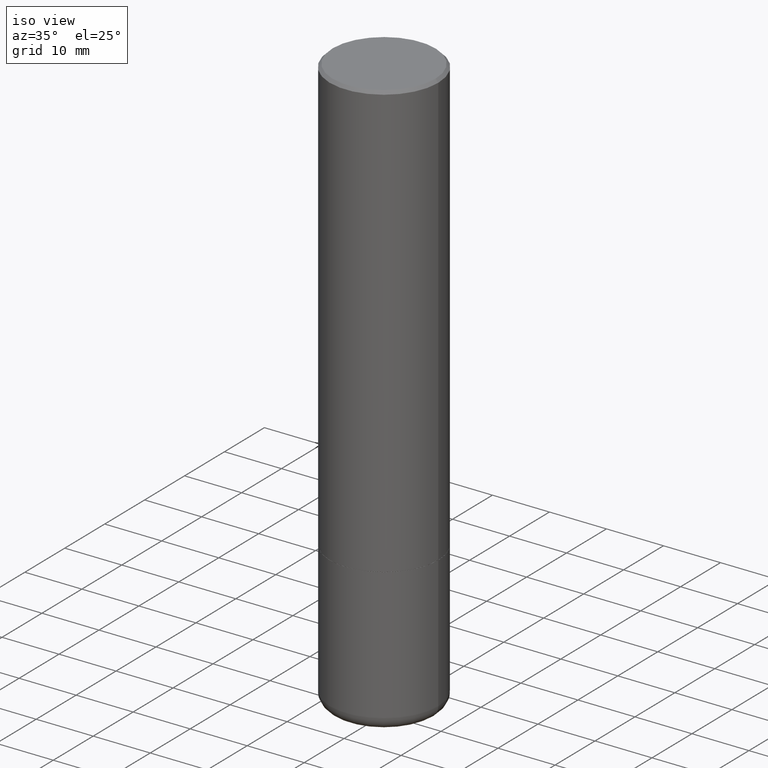
[diagram: clean part render]
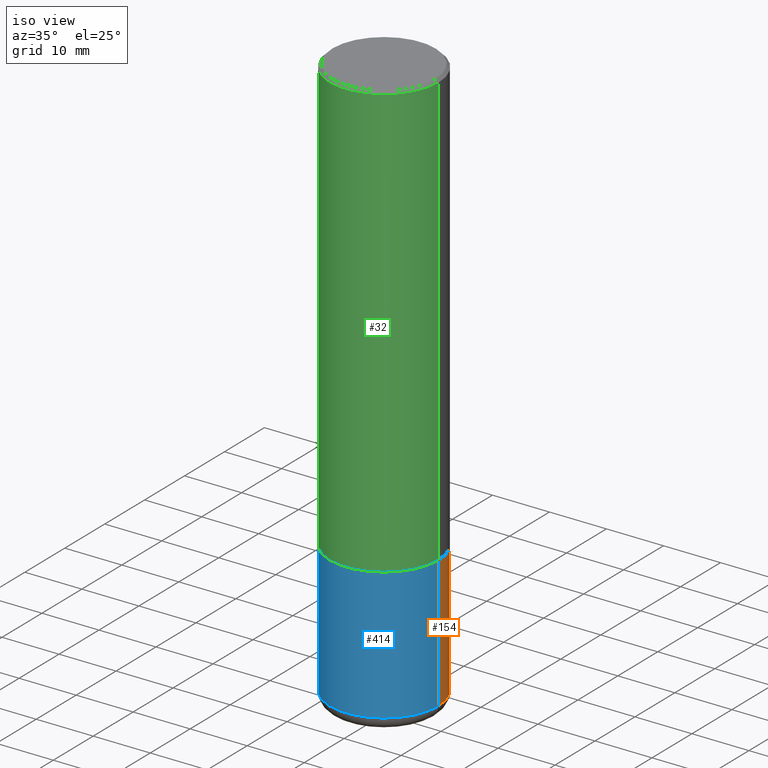
[diagram: same view with three faces highlighted in distinct colors, each labeled with its STEP entity id]
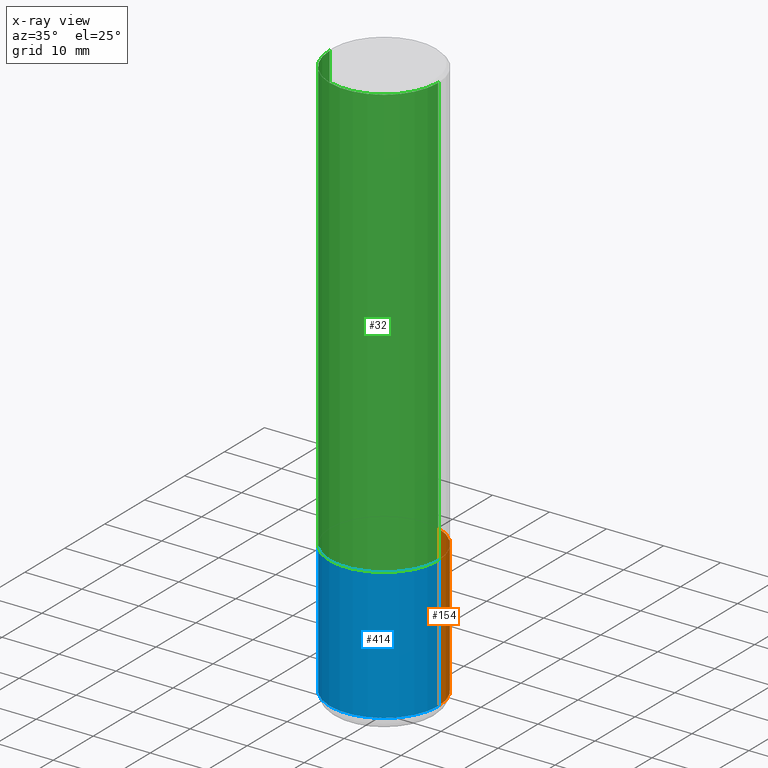
[diagram: x-ray of the same camera — body ghosted, the three highlighted faces saturated]
A machine part, iso view with three faces highlighted in distinct colors.
The next image is the same camera in x-ray (body ghosted, the three faces saturated) — at least one of them is partly hidden behind the body in this view.
Their STEP definitions:

[orange] entity #154 — the highlighted cylindrical surface (partial cylindrical patch) has radius 9.525 mm, axis along (-0, 0, 1).
#10 = ORIENTED_EDGE ( 'NONE', *, *, #254, .T. ) ;
#11 = CIRCLE ( 'NONE', #303, 0.3750000000000000555 ) ;
#46 = CARTESIAN_POINT ( 'NONE',  ( -0.3749999999999997780, 2.664535259100374119E-15, -1.844600658845588477E-29 ) ) ;
#57 = CARTESIAN_POINT ( 'NONE',  ( 0.3749999999999995004, -1.309305502066178164E-14, -2.999999999999999556 ) ) ;
#79 = VECTOR ( 'NONE', #162, 39.37007874015748143 ) ;
#95 = VERTEX_POINT ( 'NONE', #299 ) ;
#97 = EDGE_CURVE ( 'NONE', #119, #385, #11, .T. ) ;
#107 = CARTESIAN_POINT ( 'NONE',  ( 0.000000000000000000, 0.000000000000000000, 0.000000000000000000 ) ) ;
#110 = CARTESIAN_POINT ( 'NONE',  ( 0.3750000000000000555, -1.627031500405102774E-14, -3.910003426924224534 ) ) ;
#119 = VERTEX_POINT ( 'NONE', #110 ) ;
#127 = ORIENTED_EDGE ( 'NONE', *, *, #97, .T. ) ;
#152 = DIRECTION ( 'NONE',  ( 1.000000000000000000, -6.982962677686266711E-15, 0.000000000000000000 ) ) ;
#154 = ADVANCED_FACE ( 'NONE', ( #184 ), #305, .T. ) ;
#161 = VECTOR ( 'NONE', #203, 39.37007874015748143 ) ;
#162 = DIRECTION ( 'NONE',  ( -2.445468806185136877E-29, 3.491481338843145188E-15, 1.000000000000000000 ) ) ;
#168 = ORIENTED_EDGE ( 'NONE', *, *, #350, .F. ) ;
#174 = ORIENTED_EDGE ( 'NONE', *, *, #220, .F. ) ;
#184 = FACE_OUTER_BOUND ( 'NONE', #400, .T. ) ;
#195 = CIRCLE ( 'NONE', #429, 0.3749999999999995004 ) ;
#203 = DIRECTION ( 'NONE',  ( -2.445468806185136877E-29, 3.491481338843145188E-15, 1.000000000000000000 ) ) ;
#217 = DIRECTION ( 'NONE',  ( 1.000000000000000000, -6.982962677686265922E-15, 4.876176775795935793E-29 ) ) ;
#220 = EDGE_CURVE ( 'NONE', #119, #437, #384, .T. ) ;
#227 = DIRECTION ( 'NONE',  ( -2.445468806185136597E-29, 3.491481338843145583E-15, 1.000000000000000000 ) ) ;
#254 = EDGE_CURVE ( 'NONE', #385, #95, #420, .T. ) ;
#263 = CARTESIAN_POINT ( 'NONE',  ( -0.3750000000000000555, -9.398538749123680552E-15, -3.910003426924224534 ) ) ;
#268 = CARTESIAN_POINT ( 'NONE',  ( 9.561791412620176703E-29, -1.365170399991867772E-14, -3.910003426924224534 ) ) ;
#277 = CARTESIAN_POINT ( 'NONE',  ( 0.3749999999999997780, -2.618611004132348044E-15, 1.828566290923474801E-29 ) ) ;
#299 = CARTESIAN_POINT ( 'NONE',  ( -0.3749999999999995004, -9.398538749123683708E-15, -2.999999999999999556 ) ) ;
#303 = AXIS2_PLACEMENT_3D ( 'NONE', #268, #443, #490 ) ;
#305 = CYLINDRICAL_SURFACE ( 'NONE', #358, 0.3749999999999997780 ) ;
#348 = DIRECTION ( 'NONE',  ( -2.445468806185136597E-29, 3.491481338843145583E-15, 1.000000000000000000 ) ) ;
#350 = EDGE_CURVE ( 'NONE', #437, #95, #195, .T. ) ;
#358 = AXIS2_PLACEMENT_3D ( 'NONE', #107, #227, #217 ) ;
#384 = LINE ( 'NONE', #277, #79 ) ;
#385 = VERTEX_POINT ( 'NONE', #263 ) ;
#400 = EDGE_LOOP ( 'NONE', ( #127, #10, #168, #174 ) ) ;
#418 = CARTESIAN_POINT ( 'NONE',  ( 7.336406418555408669E-29, -1.047444401652943478E-14, -2.999999999999999556 ) ) ;
#420 = LINE ( 'NONE', #46, #161 ) ;
#429 = AXIS2_PLACEMENT_3D ( 'NONE', #418, #348, #152 ) ;
#437 = VERTEX_POINT ( 'NONE', #57 ) ;
#443 = DIRECTION ( 'NONE',  ( -2.445468806185136597E-29, 3.491481338843145583E-15, 1.000000000000000000 ) ) ;
#490 = DIRECTION ( 'NONE',  ( 1.000000000000000000, -6.982962677686266711E-15, 0.000000000000000000 ) ) ;

[blue] entity #414 — the highlighted cylindrical surface (partial cylindrical patch) has radius 9.525 mm, axis along (-0, 0, 1).
#46 = CARTESIAN_POINT ( 'NONE',  ( -0.3749999999999997780, 2.664535259100374119E-15, -1.844600658845588477E-29 ) ) ;
#57 = CARTESIAN_POINT ( 'NONE',  ( 0.3749999999999995004, -1.309305502066178164E-14, -2.999999999999999556 ) ) ;
#63 = AXIS2_PLACEMENT_3D ( 'NONE', #427, #84, #243 ) ;
#66 = DIRECTION ( 'NONE',  ( -2.445468806185136597E-29, 3.491481338843145583E-15, 1.000000000000000000 ) ) ;
#79 = VECTOR ( 'NONE', #162, 39.37007874015748143 ) ;
#84 = DIRECTION ( 'NONE',  ( -2.445468806185136597E-29, 3.491481338843145583E-15, 1.000000000000000000 ) ) ;
#95 = VERTEX_POINT ( 'NONE', #299 ) ;
#110 = CARTESIAN_POINT ( 'NONE',  ( 0.3750000000000000555, -1.627031500405102774E-14, -3.910003426924224534 ) ) ;
#119 = VERTEX_POINT ( 'NONE', #110 ) ;
#128 = CARTESIAN_POINT ( 'NONE',  ( 0.000000000000000000, 0.000000000000000000, 0.000000000000000000 ) ) ;
#132 = DIRECTION ( 'NONE',  ( -2.445468806185136597E-29, 3.491481338843145583E-15, 1.000000000000000000 ) ) ;
#135 = DIRECTION ( 'NONE',  ( 1.000000000000000000, -6.982962677686265922E-15, 4.876176775795935793E-29 ) ) ;
#150 = CIRCLE ( 'NONE', #471, 0.3750000000000000555 ) ;
#161 = VECTOR ( 'NONE', #203, 39.37007874015748143 ) ;
#162 = DIRECTION ( 'NONE',  ( -2.445468806185136877E-29, 3.491481338843145188E-15, 1.000000000000000000 ) ) ;
#203 = DIRECTION ( 'NONE',  ( -2.445468806185136877E-29, 3.491481338843145188E-15, 1.000000000000000000 ) ) ;
#215 = AXIS2_PLACEMENT_3D ( 'NONE', #128, #66, #135 ) ;
#220 = EDGE_CURVE ( 'NONE', #119, #437, #384, .T. ) ;
#243 = DIRECTION ( 'NONE',  ( 1.000000000000000000, -6.982962677686266711E-15, 0.000000000000000000 ) ) ;
#254 = EDGE_CURVE ( 'NONE', #385, #95, #420, .T. ) ;
#263 = CARTESIAN_POINT ( 'NONE',  ( -0.3750000000000000555, -9.398538749123680552E-15, -3.910003426924224534 ) ) ;
#277 = CARTESIAN_POINT ( 'NONE',  ( 0.3749999999999997780, -2.618611004132348044E-15, 1.828566290923474801E-29 ) ) ;
#292 = CARTESIAN_POINT ( 'NONE',  ( 9.561791412620176703E-29, -1.365170399991867772E-14, -3.910003426924224534 ) ) ;
#299 = CARTESIAN_POINT ( 'NONE',  ( -0.3749999999999995004, -9.398538749123683708E-15, -2.999999999999999556 ) ) ;
#330 = EDGE_CURVE ( 'NONE', #95, #437, #465, .T. ) ;
#331 = FACE_OUTER_BOUND ( 'NONE', #430, .T. ) ;
#344 = ORIENTED_EDGE ( 'NONE', *, *, #431, .T. ) ;
#384 = LINE ( 'NONE', #277, #79 ) ;
#385 = VERTEX_POINT ( 'NONE', #263 ) ;
#414 = ADVANCED_FACE ( 'NONE', ( #331 ), #479, .T. ) ;
#419 = ORIENTED_EDGE ( 'NONE', *, *, #220, .T. ) ;
#420 = LINE ( 'NONE', #46, #161 ) ;
#426 = ORIENTED_EDGE ( 'NONE', *, *, #254, .F. ) ;
#427 = CARTESIAN_POINT ( 'NONE',  ( 7.336406418555408669E-29, -1.047444401652943478E-14, -2.999999999999999556 ) ) ;
#430 = EDGE_LOOP ( 'NONE', ( #426, #344, #419, #470 ) ) ;
#431 = EDGE_CURVE ( 'NONE', #385, #119, #150, .T. ) ;
#437 = VERTEX_POINT ( 'NONE', #57 ) ;
#441 = DIRECTION ( 'NONE',  ( 1.000000000000000000, -6.982962677686266711E-15, 0.000000000000000000 ) ) ;
#465 = CIRCLE ( 'NONE', #63, 0.3749999999999995004 ) ;
#470 = ORIENTED_EDGE ( 'NONE', *, *, #330, .F. ) ;
#471 = AXIS2_PLACEMENT_3D ( 'NONE', #292, #132, #441 ) ;
#479 = CYLINDRICAL_SURFACE ( 'NONE', #215, 0.3749999999999997780 ) ;

[green] entity #32 — the highlighted cylindrical surface (partial cylindrical patch) has radius 9.525 mm, axis along (-0, 0, 1).
#18 = VECTOR ( 'NONE', #492, 39.37007874015748143 ) ;
#19 = EDGE_LOOP ( 'NONE', ( #473, #139, #24, #432 ) ) ;
#22 = VERTEX_POINT ( 'NONE', #383 ) ;
#24 = ORIENTED_EDGE ( 'NONE', *, *, #164, .T. ) ;
#25 = AXIS2_PLACEMENT_3D ( 'NONE', #234, #48, #316 ) ;
#32 = ADVANCED_FACE ( 'NONE', ( #187 ), #33, .T. ) ;
#33 = CYLINDRICAL_SURFACE ( 'NONE', #42, 0.3749999999999992784 ) ;
#42 = AXIS2_PLACEMENT_3D ( 'NONE', #407, #340, #258 ) ;
#48 = DIRECTION ( 'NONE',  ( -2.445468806185136597E-29, 3.491481338843145583E-15, 1.000000000000000000 ) ) ;
#81 = EDGE_CURVE ( 'NONE', #297, #171, #382, .T. ) ;
#88 = VERTEX_POINT ( 'NONE', #411 ) ;
#92 = DIRECTION ( 'NONE',  ( -2.445468806185136597E-29, 3.491481338843145583E-15, 1.000000000000000000 ) ) ;
#139 = ORIENTED_EDGE ( 'NONE', *, *, #242, .T. ) ;
#142 = CARTESIAN_POINT ( 'NONE',  ( -0.3749999999999992784, 2.664535259100370569E-15, -1.844600658845586235E-29 ) ) ;
#163 = CARTESIAN_POINT ( 'NONE',  ( 4.890937612370327459E-31, -6.982962677686369262E-17, -0.02000000000000022246 ) ) ;
#164 = EDGE_CURVE ( 'NONE', #88, #22, #374, .T. ) ;
#171 = VERTEX_POINT ( 'NONE', #386 ) ;
#187 = FACE_OUTER_BOUND ( 'NONE', #19, .T. ) ;
#192 = CARTESIAN_POINT ( 'NONE',  ( -0.3749999999999993894, -2.605855821883354597E-15, -2.999000000000000554 ) ) ;
#208 = AXIS2_PLACEMENT_3D ( 'NONE', #163, #92, #250 ) ;
#233 = VECTOR ( 'NONE', #262, 39.37007874015748143 ) ;
#234 = CARTESIAN_POINT ( 'NONE',  ( 7.333960949749226429E-29, -1.047095253519059492E-14, -2.999000000000000554 ) ) ;
#242 = EDGE_CURVE ( 'NONE', #297, #88, #275, .T. ) ;
#250 = DIRECTION ( 'NONE',  ( 1.000000000000000000, -6.982962677686266711E-15, 0.000000000000000000 ) ) ;
#258 = DIRECTION ( 'NONE',  ( 1.000000000000000000, -6.982962677686267499E-15, 4.876176775795935232E-29 ) ) ;
#262 = DIRECTION ( 'NONE',  ( -2.445468806185136877E-29, 3.491481338843145188E-15, 1.000000000000000000 ) ) ;
#264 = CARTESIAN_POINT ( 'NONE',  ( 0.3749999999999992784, -2.618611004132345283E-15, 1.828566290923472279E-29 ) ) ;
#275 = CIRCLE ( 'NONE', #25, 0.3749999999999995004 ) ;
#297 = VERTEX_POINT ( 'NONE', #192 ) ;
#316 = DIRECTION ( 'NONE',  ( 1.000000000000000000, -6.982962677686266711E-15, 0.000000000000000000 ) ) ;
#340 = DIRECTION ( 'NONE',  ( -2.445468806185136597E-29, 3.491481338843145583E-15, 1.000000000000000000 ) ) ;
#374 = LINE ( 'NONE', #264, #233 ) ;
#382 = LINE ( 'NONE', #142, #18 ) ;
#383 = CARTESIAN_POINT ( 'NONE',  ( 0.3749999999999991673, -2.642516375941182112E-15, -0.02000000000000022246 ) ) ;
#386 = CARTESIAN_POINT ( 'NONE',  ( -0.3749999999999991673, 2.548781377355480407E-15, -0.02000000000000022246 ) ) ;
#407 = CARTESIAN_POINT ( 'NONE',  ( 0.000000000000000000, 0.000000000000000000, 0.000000000000000000 ) ) ;
#411 = CARTESIAN_POINT ( 'NONE',  ( 0.3749999999999995004, -1.308956353932294179E-14, -2.999000000000000554 ) ) ;
#422 = CIRCLE ( 'NONE', #208, 0.3749999999999991673 ) ;
#432 = ORIENTED_EDGE ( 'NONE', *, *, #482, .F. ) ;
#473 = ORIENTED_EDGE ( 'NONE', *, *, #81, .F. ) ;
#482 = EDGE_CURVE ( 'NONE', #171, #22, #422, .T. ) ;
#492 = DIRECTION ( 'NONE',  ( -2.445468806185136877E-29, 3.491481338843145188E-15, 1.000000000000000000 ) ) ;